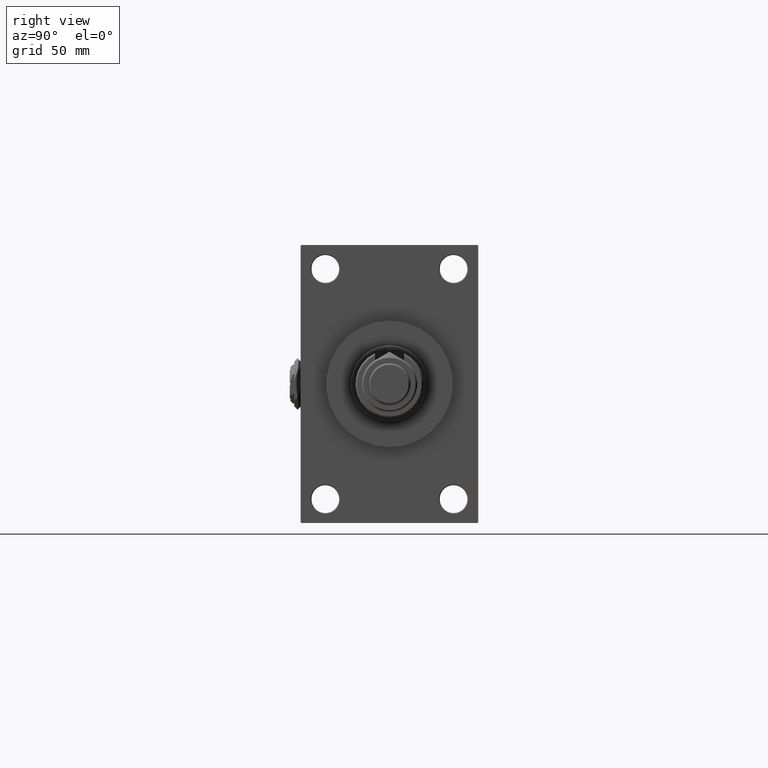
[diagram: clean part render]
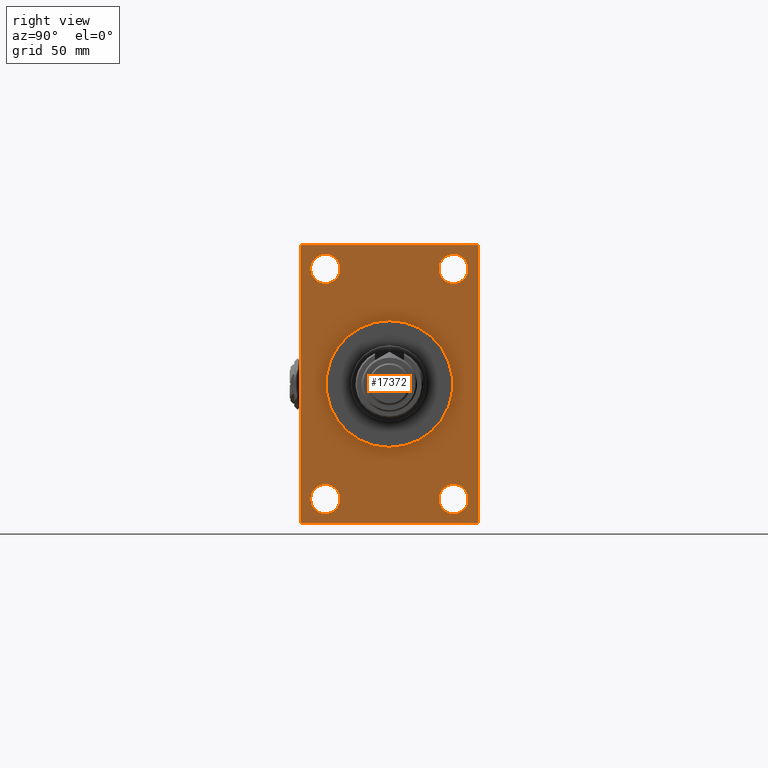
[diagram: same view with one face highlighted and labeled with its STEP entity id]
A machine part, right view. The second image highlights one B-rep face of the part: STEP entity #17372.
In plain terms, the highlighted planar face has unit normal (-1, 0, 0).
Its self-contained STEP definition (entity closure, byte-faithful):
#694 = VERTEX_POINT ( 'NONE', #43526 ) ;
#898 = DIRECTION ( 'NONE',  ( 0.000000000000000000, 3.854941057726238467E-17, -1.000000000000000000 ) ) ;
#1082 = ORIENTED_EDGE ( 'NONE', *, *, #8627, .F. ) ;
#1086 = FACE_OUTER_BOUND ( 'NONE', #7494, .T. ) ;
#1691 = VERTEX_POINT ( 'NONE', #34967 ) ;
#1810 = VECTOR ( 'NONE', #19220, 1000.000000000000000 ) ;
#1859 = DIRECTION ( 'NONE',  ( 0.000000000000000000, -1.000000000000000000, -1.206764157201257045E-16 ) ) ;
#2075 = LINE ( 'NONE', #49709, #13573 ) ;
#2139 = CARTESIAN_POINT ( 'NONE',  ( 239.0000000000000000, 57.49999999999997158, 89.50000000000004263 ) ) ;
#2203 = DIRECTION ( 'NONE',  ( 0.000000000000000000, 0.000000000000000000, 1.000000000000000000 ) ) ;
#2292 = LINE ( 'NONE', #31419, #1810 ) ;
#2473 = DIRECTION ( 'NONE',  ( -1.000000000000000000, 0.000000000000000000, -0.000000000000000000 ) ) ;
#2673 = ORIENTED_EDGE ( 'NONE', *, *, #2907, .T. ) ;
#2907 = EDGE_CURVE ( 'NONE', #33577, #17536, #8747, .T. ) ;
#3271 = AXIS2_PLACEMENT_3D ( 'NONE', #32438, #40117, #48284 ) ;
#3531 = EDGE_CURVE ( 'NONE', #37767, #694, #7612, .T. ) ;
#4303 = EDGE_LOOP ( 'NONE', ( #49231, #1082 ) ) ;
#4807 = DIRECTION ( 'NONE',  ( 0.000000000000000000, 0.000000000000000000, -1.000000000000000000 ) ) ;
#5707 = VECTOR ( 'NONE', #50888, 1000.000000000000000 ) ;
#5778 = EDGE_CURVE ( 'NONE', #20999, #20617, #33088, .T. ) ;
#5867 = DIRECTION ( 'NONE',  ( 0.000000000000000000, -1.000000000000000000, -1.206764157201257291E-16 ) ) ;
#6012 = AXIS2_PLACEMENT_3D ( 'NONE', #21301, #50131, #37463 ) ;
#6779 = CARTESIAN_POINT ( 'NONE',  ( 239.0000000000000000, -57.00000000000002132, -90.00000000000001421 ) ) ;
#7373 = VERTEX_POINT ( 'NONE', #26717 ) ;
#7494 = EDGE_LOOP ( 'NONE', ( #2673, #33253, #25300, #50414, #16766, #21289, #9846, #25220 ) ) ;
#7532 = EDGE_LOOP ( 'NONE', ( #51961, #9488 ) ) ;
#7612 = CIRCLE ( 'NONE', #24534, 9.500000000000008882 ) ;
#8086 = CARTESIAN_POINT ( 'NONE',  ( 239.0000000000000000, -41.49999999999999289, -74.49999999999998579 ) ) ;
#8229 = VERTEX_POINT ( 'NONE', #17033 ) ;
#8347 = CARTESIAN_POINT ( 'NONE',  ( 239.0000000000000000, 41.50000000000000711, -74.50000000000000000 ) ) ;
#8523 = FACE_BOUND ( 'NONE', #39243, .T. ) ;
#8627 = EDGE_CURVE ( 'NONE', #31421, #8229, #37008, .T. ) ;
#8747 = LINE ( 'NONE', #24881, #18552 ) ;
#9457 = CIRCLE ( 'NONE', #33983, 9.500000000000008882 ) ;
#9488 = ORIENTED_EDGE ( 'NONE', *, *, #26220, .T. ) ;
#9716 = VERTEX_POINT ( 'NONE', #34631 ) ;
#9816 = CARTESIAN_POINT ( 'NONE',  ( 239.0000000000000000, 0.000000000000000000, 0.000000000000000000 ) ) ;
#9846 = ORIENTED_EDGE ( 'NONE', *, *, #32806, .T. ) ;
#9937 = VERTEX_POINT ( 'NONE', #25165 ) ;
#10532 = DIRECTION ( 'NONE',  ( -1.000000000000000000, 0.000000000000000000, -0.000000000000000000 ) ) ;
#10634 = EDGE_CURVE ( 'NONE', #15350, #48832, #25701, .T. ) ;
#11413 = CARTESIAN_POINT ( 'NONE',  ( 239.0000000000000000, -41.49999999999999289, -64.99999999999997158 ) ) ;
#12671 = AXIS2_PLACEMENT_3D ( 'NONE', #29418, #25441, #44493 ) ;
#12931 = AXIS2_PLACEMENT_3D ( 'NONE', #18354, #22858, #34007 ) ;
#13011 = CARTESIAN_POINT ( 'NONE',  ( 239.0000000000000000, 41.50000000000000711, 65.00000000000000000 ) ) ;
#13573 = VECTOR ( 'NONE', #38345, 1000.000000000000000 ) ;
#14411 = EDGE_CURVE ( 'NONE', #24128, #9937, #24383, .T. ) ;
#15350 = VERTEX_POINT ( 'NONE', #38169 ) ;
#15666 = VERTEX_POINT ( 'NONE', #18773 ) ;
#15931 = CIRCLE ( 'NONE', #3271, 9.500000000000008882 ) ;
#16271 = AXIS2_PLACEMENT_3D ( 'NONE', #38737, #2473, #2203 ) ;
#16766 = ORIENTED_EDGE ( 'NONE', *, *, #48026, .F. ) ;
#17019 = LINE ( 'NONE', #41096, #51951 ) ;
#17033 = CARTESIAN_POINT ( 'NONE',  ( 239.0000000000000000, 0.000000000000000000, 41.00000000000000000 ) ) ;
#17243 = PLANE ( 'NONE',  #12671 ) ;
#17249 = VERTEX_POINT ( 'NONE', #13011 ) ;
#17372 = ADVANCED_FACE ( 'NONE', ( #28382, #8523, #41574, #21198, #37362, #1086 ), #17243, .F. ) ;
#17536 = VERTEX_POINT ( 'NONE', #43917 ) ;
#18017 = DIRECTION ( 'NONE',  ( 1.000000000000000000, 0.000000000000000000, 0.000000000000000000 ) ) ;
#18354 = CARTESIAN_POINT ( 'NONE',  ( 239.0000000000000000, 41.50000000000000711, 74.50000000000001421 ) ) ;
#18552 = VECTOR ( 'NONE', #29639, 1000.000000000000000 ) ;
#18748 = EDGE_CURVE ( 'NONE', #15666, #33577, #2075, .T. ) ;
#18773 = CARTESIAN_POINT ( 'NONE',  ( 239.0000000000000000, -57.00000000000001421, 89.99999999999997158 ) ) ;
#19220 = DIRECTION ( 'NONE',  ( -0.000000000000000000, 0.7071067811865378028, 0.7071067811865573427 ) ) ;
#19235 = DIRECTION ( 'NONE',  ( 0.000000000000000000, 0.000000000000000000, -1.000000000000000000 ) ) ;
#20511 = LINE ( 'NONE', #24750, #38010 ) ;
#20617 = VERTEX_POINT ( 'NONE', #11413 ) ;
#20945 = CARTESIAN_POINT ( 'NONE',  ( 239.0000000000000000, 41.50000000000000711, -84.00000000000000000 ) ) ;
#20999 = VERTEX_POINT ( 'NONE', #40498 ) ;
#21198 = FACE_BOUND ( 'NONE', #7532, .T. ) ;
#21289 = ORIENTED_EDGE ( 'NONE', *, *, #34840, .T. ) ;
#21301 = CARTESIAN_POINT ( 'NONE',  ( 239.0000000000000000, -41.49999999999999289, -74.49999999999998579 ) ) ;
#21520 = EDGE_LOOP ( 'NONE', ( #37914, #39440 ) ) ;
#21619 = EDGE_CURVE ( 'NONE', #20617, #20999, #9457, .T. ) ;
#21691 = VERTEX_POINT ( 'NONE', #2139 ) ;
#22858 = DIRECTION ( 'NONE',  ( -1.000000000000000000, 0.000000000000000000, -0.000000000000000000 ) ) ;
#22896 = ORIENTED_EDGE ( 'NONE', *, *, #21619, .T. ) ;
#22971 = CIRCLE ( 'NONE', #35691, 9.500000000000008882 ) ;
#24128 = VERTEX_POINT ( 'NONE', #52245 ) ;
#24383 = CIRCLE ( 'NONE', #26908, 9.500000000000008882 ) ;
#24534 = AXIS2_PLACEMENT_3D ( 'NONE', #8347, #44587, #32448 ) ;
#24750 = CARTESIAN_POINT ( 'NONE',  ( 239.0000000000000000, 57.49999999999997158, 89.99999999999998579 ) ) ;
#24849 = EDGE_CURVE ( 'NONE', #694, #37767, #22971, .T. ) ;
#24881 = CARTESIAN_POINT ( 'NONE',  ( 239.0000000000000000, -57.50000000000002132, 89.99999999999997158 ) ) ;
#25052 = CARTESIAN_POINT ( 'NONE',  ( 239.0000000000000000, 41.50000000000000711, -74.50000000000000000 ) ) ;
#25165 = CARTESIAN_POINT ( 'NONE',  ( 239.0000000000000000, -41.49999999999999289, 84.00000000000001421 ) ) ;
#25220 = ORIENTED_EDGE ( 'NONE', *, *, #18748, .T. ) ;
#25300 = ORIENTED_EDGE ( 'NONE', *, *, #10634, .F. ) ;
#25441 = DIRECTION ( 'NONE',  ( -1.000000000000000000, 0.000000000000000000, -0.000000000000000000 ) ) ;
#25590 = CIRCLE ( 'NONE', #12931, 9.500000000000008882 ) ;
#25701 = LINE ( 'NONE', #41831, #29333 ) ;
#26162 = DIRECTION ( 'NONE',  ( 0.000000000000000000, 0.000000000000000000, 1.000000000000000000 ) ) ;
#26220 = EDGE_CURVE ( 'NONE', #9716, #17249, #39073, .T. ) ;
#26717 = CARTESIAN_POINT ( 'NONE',  ( 239.0000000000000000, 57.00000000000002842, 89.99999999999998579 ) ) ;
#26723 = CIRCLE ( 'NONE', #48689, 41.00000000000000000 ) ;
#26908 = AXIS2_PLACEMENT_3D ( 'NONE', #42293, #10532, #26162 ) ;
#27205 = EDGE_CURVE ( 'NONE', #17249, #9716, #25590, .T. ) ;
#27303 = CARTESIAN_POINT ( 'NONE',  ( 239.0000000000000000, -57.50000000000002132, 89.49999999999994316 ) ) ;
#28382 = FACE_BOUND ( 'NONE', #48473, .T. ) ;
#29333 = VECTOR ( 'NONE', #1859, 1000.000000000000000 ) ;
#29418 = CARTESIAN_POINT ( 'NONE',  ( 239.0000000000000000, 0.000000000000000000, 0.000000000000000000 ) ) ;
#29639 = DIRECTION ( 'NONE',  ( 0.000000000000000000, 0.000000000000000000, -1.000000000000000000 ) ) ;
#30645 = DIRECTION ( 'NONE',  ( 1.000000000000000000, 0.000000000000000000, 0.000000000000000000 ) ) ;
#31419 = CARTESIAN_POINT ( 'NONE',  ( 239.0000000000000000, 57.49999999999997868, -89.49999999999995737 ) ) ;
#31421 = VERTEX_POINT ( 'NONE', #52323 ) ;
#32438 = CARTESIAN_POINT ( 'NONE',  ( 239.0000000000000000, -41.49999999999999289, 74.50000000000001421 ) ) ;
#32448 = DIRECTION ( 'NONE',  ( 0.000000000000000000, 0.000000000000000000, 1.000000000000000000 ) ) ;
#32806 = EDGE_CURVE ( 'NONE', #7373, #15666, #49780, .T. ) ;
#33088 = CIRCLE ( 'NONE', #6012, 9.500000000000008882 ) ;
#33253 = ORIENTED_EDGE ( 'NONE', *, *, #40931, .T. ) ;
#33577 = VERTEX_POINT ( 'NONE', #27303 ) ;
#33983 = AXIS2_PLACEMENT_3D ( 'NONE', #8086, #41600, #39852 ) ;
#34007 = DIRECTION ( 'NONE',  ( 0.000000000000000000, 0.000000000000000000, 1.000000000000000000 ) ) ;
#34631 = CARTESIAN_POINT ( 'NONE',  ( 239.0000000000000000, 41.50000000000000711, 84.00000000000001421 ) ) ;
#34840 = EDGE_CURVE ( 'NONE', #21691, #7373, #17019, .T. ) ;
#34967 = CARTESIAN_POINT ( 'NONE',  ( 239.0000000000000000, 57.49999999999997868, -89.49999999999990052 ) ) ;
#35691 = AXIS2_PLACEMENT_3D ( 'NONE', #25052, #37741, #49635 ) ;
#36545 = LINE ( 'NONE', #39263, #5707 ) ;
#37008 = CIRCLE ( 'NONE', #48805, 41.00000000000000000 ) ;
#37136 = DIRECTION ( 'NONE',  ( 0.000000000000000000, -0.7071067811865474617, 0.7071067811865474617 ) ) ;
#37362 = FACE_BOUND ( 'NONE', #4303, .T. ) ;
#37463 = DIRECTION ( 'NONE',  ( 0.000000000000000000, 0.000000000000000000, 1.000000000000000000 ) ) ;
#37741 = DIRECTION ( 'NONE',  ( -1.000000000000000000, 0.000000000000000000, -0.000000000000000000 ) ) ;
#37759 = EDGE_CURVE ( 'NONE', #8229, #31421, #26723, .T. ) ;
#37767 = VERTEX_POINT ( 'NONE', #20945 ) ;
#37914 = ORIENTED_EDGE ( 'NONE', *, *, #3531, .T. ) ;
#38010 = VECTOR ( 'NONE', #898, 1000.000000000000000 ) ;
#38169 = CARTESIAN_POINT ( 'NONE',  ( 239.0000000000000000, 56.99999999999995026, -90.00000000000000000 ) ) ;
#38345 = DIRECTION ( 'NONE',  ( -0.000000000000000000, -0.7071067811865328068, -0.7071067811865622277 ) ) ;
#38572 = ORIENTED_EDGE ( 'NONE', *, *, #14411, .T. ) ;
#38737 = CARTESIAN_POINT ( 'NONE',  ( 239.0000000000000000, 41.50000000000000711, 74.50000000000001421 ) ) ;
#39073 = CIRCLE ( 'NONE', #16271, 9.500000000000008882 ) ;
#39207 = ORIENTED_EDGE ( 'NONE', *, *, #42538, .T. ) ;
#39243 = EDGE_LOOP ( 'NONE', ( #51496, #22896 ) ) ;
#39263 = CARTESIAN_POINT ( 'NONE',  ( 239.0000000000000000, -57.00000000000002132, -90.00000000000001421 ) ) ;
#39440 = ORIENTED_EDGE ( 'NONE', *, *, #24849, .T. ) ;
#39852 = DIRECTION ( 'NONE',  ( 0.000000000000000000, 0.000000000000000000, 1.000000000000000000 ) ) ;
#40117 = DIRECTION ( 'NONE',  ( -1.000000000000000000, 0.000000000000000000, -0.000000000000000000 ) ) ;
#40498 = CARTESIAN_POINT ( 'NONE',  ( 239.0000000000000000, -41.49999999999999289, -83.99999999999998579 ) ) ;
#40931 = EDGE_CURVE ( 'NONE', #17536, #48832, #36545, .T. ) ;
#41096 = CARTESIAN_POINT ( 'NONE',  ( 239.0000000000000000, 57.00000000000002842, 89.99999999999998579 ) ) ;
#41574 = FACE_BOUND ( 'NONE', #21520, .T. ) ;
#41600 = DIRECTION ( 'NONE',  ( -1.000000000000000000, 0.000000000000000000, -0.000000000000000000 ) ) ;
#41831 = CARTESIAN_POINT ( 'NONE',  ( 239.0000000000000000, 57.49999999999997868, -90.00000000000000000 ) ) ;
#42293 = CARTESIAN_POINT ( 'NONE',  ( 239.0000000000000000, -41.49999999999999289, 74.50000000000001421 ) ) ;
#42379 = CARTESIAN_POINT ( 'NONE',  ( 239.0000000000000000, 57.49999999999997158, 89.99999999999998579 ) ) ;
#42538 = EDGE_CURVE ( 'NONE', #9937, #24128, #15931, .T. ) ;
#43526 = CARTESIAN_POINT ( 'NONE',  ( 239.0000000000000000, 41.50000000000000711, -64.99999999999998579 ) ) ;
#43574 = CARTESIAN_POINT ( 'NONE',  ( 239.0000000000000000, 0.000000000000000000, 0.000000000000000000 ) ) ;
#43678 = VECTOR ( 'NONE', #5867, 1000.000000000000000 ) ;
#43917 = CARTESIAN_POINT ( 'NONE',  ( 239.0000000000000000, -57.50000000000002132, -89.49999999999997158 ) ) ;
#44493 = DIRECTION ( 'NONE',  ( -0.000000000000000000, 0.000000000000000000, 1.000000000000000000 ) ) ;
#44587 = DIRECTION ( 'NONE',  ( -1.000000000000000000, 0.000000000000000000, -0.000000000000000000 ) ) ;
#48026 = EDGE_CURVE ( 'NONE', #21691, #1691, #20511, .T. ) ;
#48284 = DIRECTION ( 'NONE',  ( 0.000000000000000000, 0.000000000000000000, 1.000000000000000000 ) ) ;
#48473 = EDGE_LOOP ( 'NONE', ( #38572, #39207 ) ) ;
#48689 = AXIS2_PLACEMENT_3D ( 'NONE', #9816, #18017, #4807 ) ;
#48805 = AXIS2_PLACEMENT_3D ( 'NONE', #43574, #30645, #19235 ) ;
#48832 = VERTEX_POINT ( 'NONE', #6779 ) ;
#49231 = ORIENTED_EDGE ( 'NONE', *, *, #37759, .F. ) ;
#49635 = DIRECTION ( 'NONE',  ( 0.000000000000000000, 0.000000000000000000, 1.000000000000000000 ) ) ;
#49709 = CARTESIAN_POINT ( 'NONE',  ( 239.0000000000000000, -57.50000000000002132, 89.49999999999994316 ) ) ;
#49780 = LINE ( 'NONE', #42379, #43678 ) ;
#50131 = DIRECTION ( 'NONE',  ( -1.000000000000000000, 0.000000000000000000, -0.000000000000000000 ) ) ;
#50414 = ORIENTED_EDGE ( 'NONE', *, *, #51470, .T. ) ;
#50888 = DIRECTION ( 'NONE',  ( 0.000000000000000000, 0.7071067811865573427, -0.7071067811865378028 ) ) ;
#51470 = EDGE_CURVE ( 'NONE', #15350, #1691, #2292, .T. ) ;
#51496 = ORIENTED_EDGE ( 'NONE', *, *, #5778, .T. ) ;
#51951 = VECTOR ( 'NONE', #37136, 1000.000000000000114 ) ;
#51961 = ORIENTED_EDGE ( 'NONE', *, *, #27205, .T. ) ;
#52245 = CARTESIAN_POINT ( 'NONE',  ( 239.0000000000000000, -41.49999999999999289, 65.00000000000000000 ) ) ;
#52323 = CARTESIAN_POINT ( 'NONE',  ( 239.0000000000000000, 5.021051876504148963E-15, -41.00000000000000000 ) ) ;